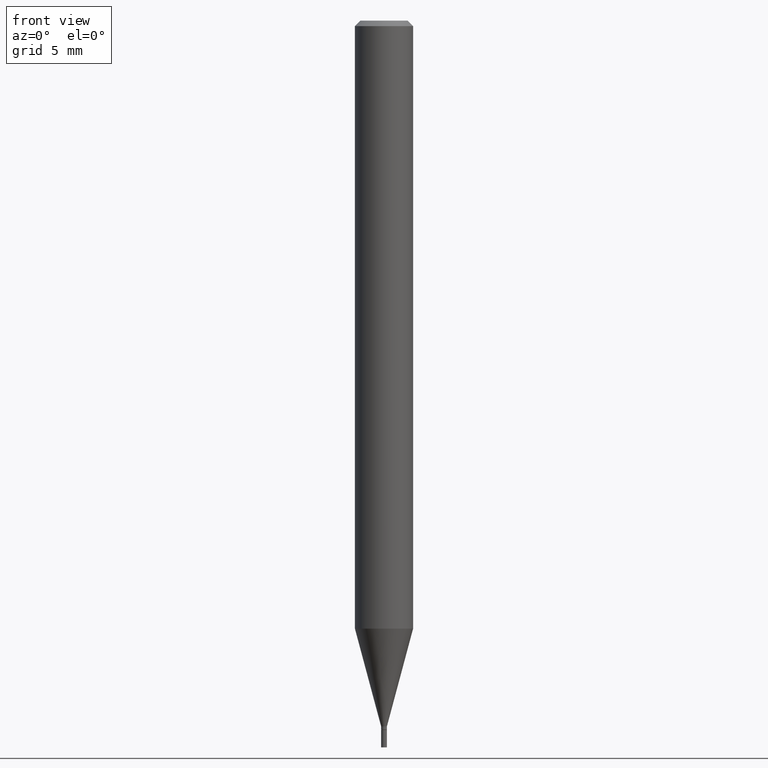
[diagram: clean part render]
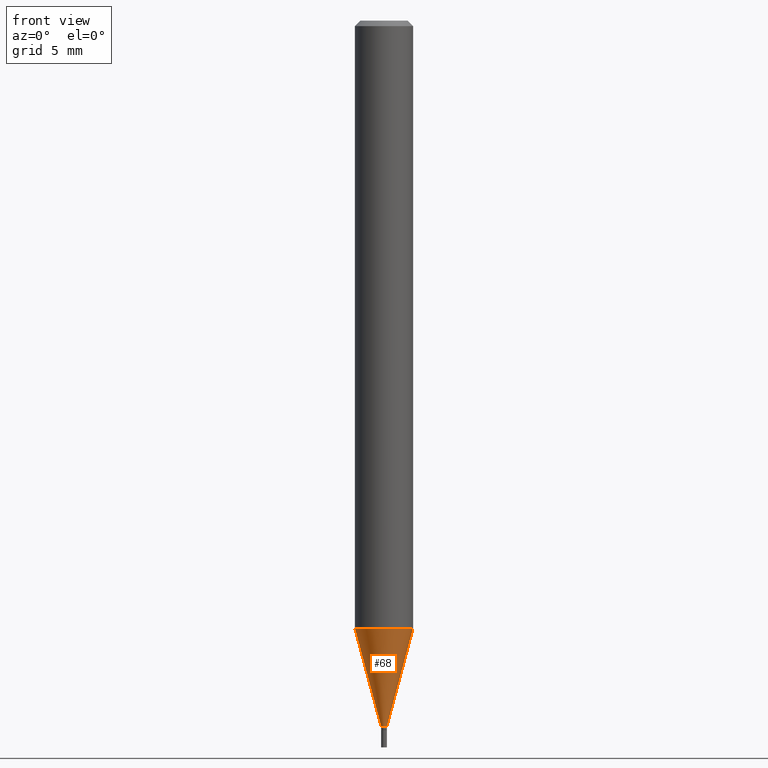
[diagram: same view with one face highlighted and labeled with its STEP entity id]
A machine part, front view. The second image highlights one B-rep face of the part: STEP entity #68.
In plain terms, the highlighted conical surface has half-angle 15 deg.
Its self-contained STEP definition (entity closure, byte-faithful):
#1 = EDGE_CURVE ( 'NONE', #133, #443, #170, .T. ) ;
#5 = DIRECTION ( 'NONE',  ( 1.000000000000000000, -6.982962677686261977E-15, 0.000000000000000000 ) ) ;
#9 = CARTESIAN_POINT ( 'NONE',  ( 0.007849999999999917807, -6.728782836218509990E-15, -1.911499999999999977 ) ) ;
#39 = CIRCLE ( 'NONE', #95, 0.007849999999999917807 ) ;
#40 = CARTESIAN_POINT ( 'NONE',  ( 0.07875000000000000056, -6.300020540374364263E-15, -1.646897597743366859 ) ) ;
#45 = DIRECTION ( 'NONE',  ( -2.445468806185136597E-29, 3.491481338843145583E-15, 1.000000000000000000 ) ) ;
#47 = DIRECTION ( 'NONE',  ( 1.000000000000000000, -6.982962677686276177E-15, 0.000000000000000000 ) ) ;
#68 = ADVANCED_FACE ( 'NONE', ( #450 ), #272, .T. ) ;
#74 = CARTESIAN_POINT ( 'NONE',  ( -0.007849999999999917807, -5.904374399768500220E-15, -1.911499999999999977 ) ) ;
#87 = EDGE_CURVE ( 'NONE', #128, #443, #428, .T. ) ;
#95 = AXIS2_PLACEMENT_3D ( 'NONE', #110, #222, #115 ) ;
#110 = CARTESIAN_POINT ( 'NONE',  ( 4.674513623022888811E-29, -6.673966579198673201E-15, -1.911499999999999977 ) ) ;
#115 = DIRECTION ( 'NONE',  ( 1.000000000000000000, -6.982962677686276177E-15, 0.000000000000000000 ) ) ;
#128 = VERTEX_POINT ( 'NONE', #365 ) ;
#129 = VERTEX_POINT ( 'NONE', #74 ) ;
#133 = VERTEX_POINT ( 'NONE', #9 ) ;
#155 = ORIENTED_EDGE ( 'NONE', *, *, #465, .F. ) ;
#164 = EDGE_LOOP ( 'NONE', ( #155, #229, #451, #232 ) ) ;
#170 = LINE ( 'NONE', #278, #436 ) ;
#222 = DIRECTION ( 'NONE',  ( -2.445468806185136597E-29, 3.491481338843145583E-15, 1.000000000000000000 ) ) ;
#229 = ORIENTED_EDGE ( 'NONE', *, *, #307, .T. ) ;
#232 = ORIENTED_EDGE ( 'NONE', *, *, #87, .F. ) ;
#244 = DIRECTION ( 'NONE',  ( 0.2588190451025212391, 1.565188264969622362E-15, 0.9659258262890679791 ) ) ;
#250 = CARTESIAN_POINT ( 'NONE',  ( 4.027436702262640523E-29, -5.750112229506570917E-15, -1.646897597743366859 ) ) ;
#272 = CONICAL_SURFACE ( 'NONE', #375, 0.007849999999999917807, 0.2617993877991499629 ) ;
#278 = CARTESIAN_POINT ( 'NONE',  ( 0.007849999999999917807, -6.728782836218509990E-15, -1.911499999999999977 ) ) ;
#284 = VECTOR ( 'NONE', #364, 39.37007874015748854 ) ;
#286 = LINE ( 'NONE', #438, #284 ) ;
#307 = EDGE_CURVE ( 'NONE', #129, #133, #39, .T. ) ;
#328 = AXIS2_PLACEMENT_3D ( 'NONE', #250, #361, #5 ) ;
#361 = DIRECTION ( 'NONE',  ( -2.445468806185136597E-29, 3.491481338843145583E-15, 1.000000000000000000 ) ) ;
#364 = DIRECTION ( 'NONE',  ( -0.2588190451025212391, 5.211531920934549464E-15, 0.9659258262890679791 ) ) ;
#365 = CARTESIAN_POINT ( 'NONE',  ( -0.07875000000000000056, -5.190559825095492905E-15, -1.646897597743366859 ) ) ;
#375 = AXIS2_PLACEMENT_3D ( 'NONE', #386, #45, #47 ) ;
#386 = CARTESIAN_POINT ( 'NONE',  ( 4.674513623022888811E-29, -6.673966579198673201E-15, -1.911499999999999977 ) ) ;
#428 = CIRCLE ( 'NONE', #328, 0.07875000000000000056 ) ;
#436 = VECTOR ( 'NONE', #244, 39.37007874015748854 ) ;
#438 = CARTESIAN_POINT ( 'NONE',  ( -0.007849999999999917807, -6.618188974441505957E-15, -1.911499999999999977 ) ) ;
#443 = VERTEX_POINT ( 'NONE', #40 ) ;
#450 = FACE_OUTER_BOUND ( 'NONE', #164, .T. ) ;
#451 = ORIENTED_EDGE ( 'NONE', *, *, #1, .T. ) ;
#465 = EDGE_CURVE ( 'NONE', #129, #128, #286, .T. ) ;